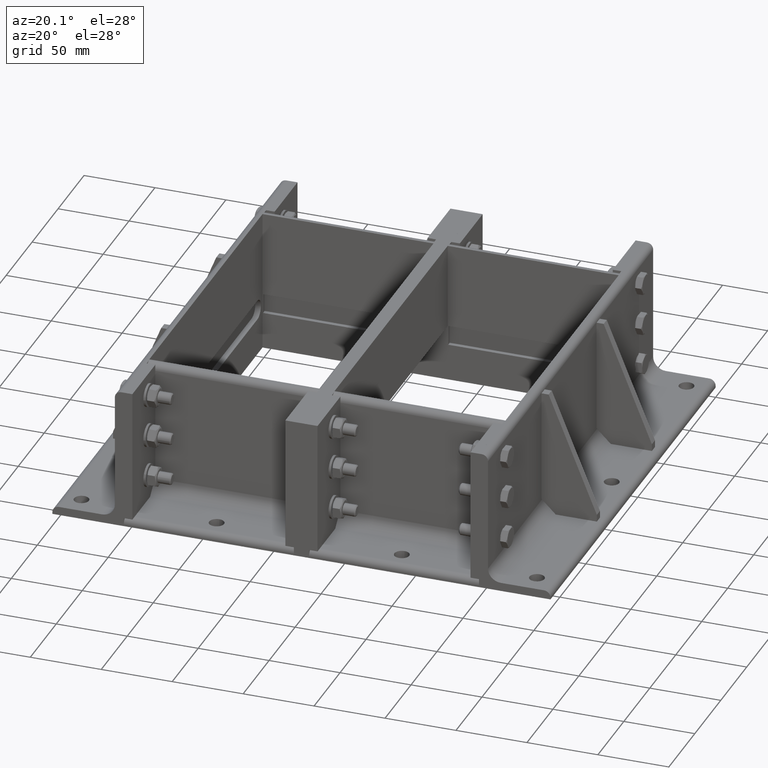
[diagram: clean part render]
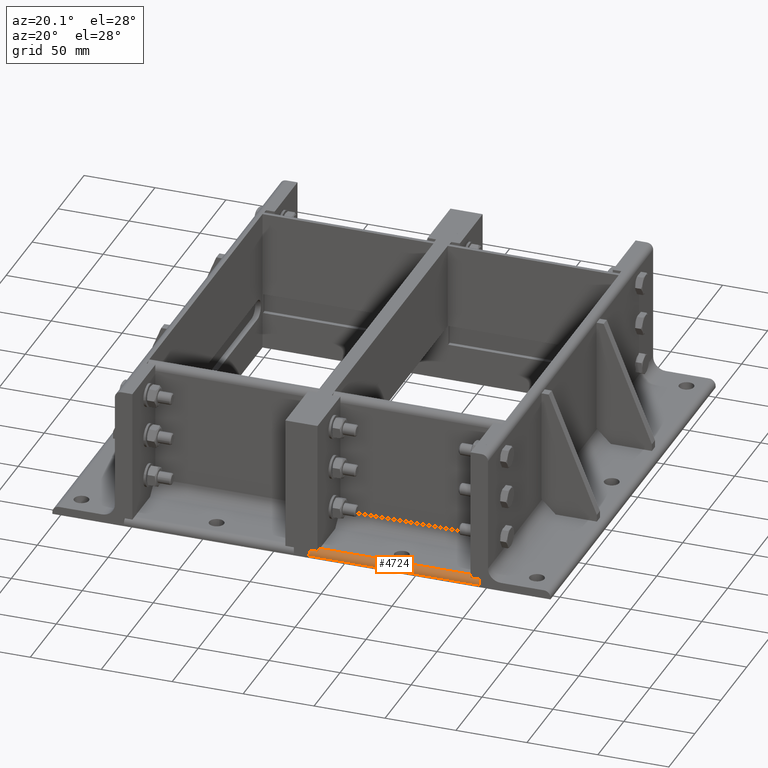
[diagram: same view with one face highlighted and labeled with its STEP entity id]
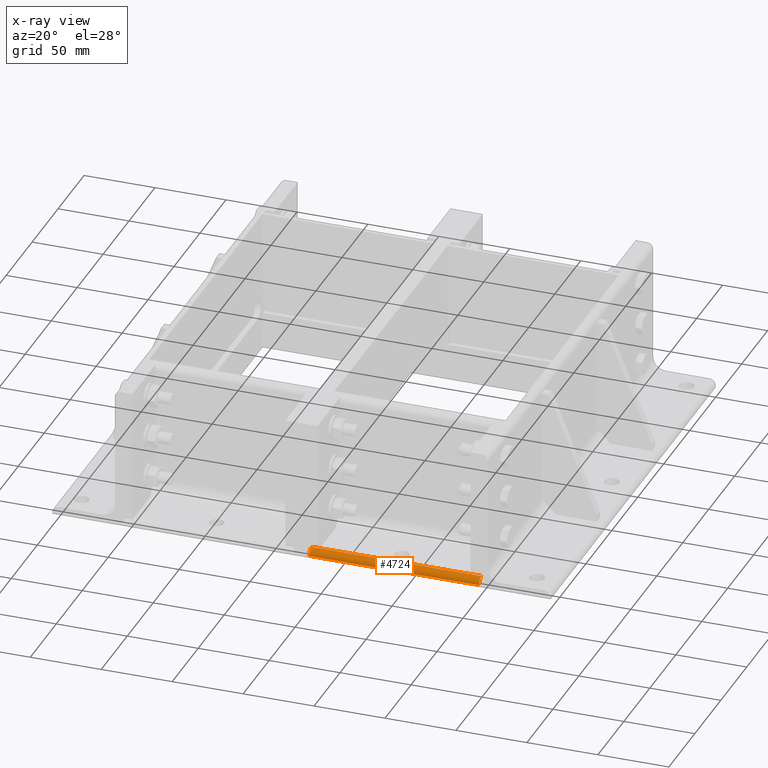
[diagram: x-ray of the same camera — body ghosted, the highlighted face saturated]
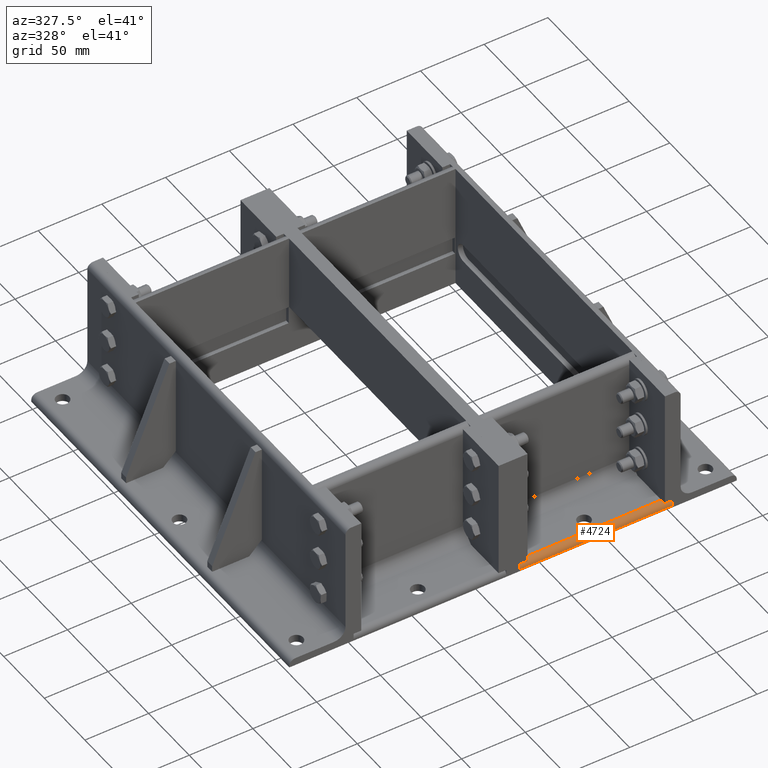
[diagram: same view with one face highlighted and labeled with its STEP entity id]
A machine part, auxiliary view. The second image highlights one B-rep face of the part: STEP entity #4724.
The next image is the same camera in x-ray: the body ghosted, the highlighted face saturated — about 0% of this face is hidden behind the body in this view.
A second angle (auxiliary view) of the same face is appended — the face is thin or edge-on in the first view.
In plain terms, the highlighted cylindrical surface (edge-blend (fillet) strip) has radius 4.5 mm, axis along (1, 0, 0).
Its self-contained STEP definition (entity closure, byte-faithful):
#4575=CARTESIAN_POINT('',(39.5,119.80000000000001,-1.208471E-014));
#4576=VERTEX_POINT('',#4575);
#4583=CARTESIAN_POINT('',(44.0,119.80000000000001,-4.500000000000012));
#4584=VERTEX_POINT('',#4583);
#4585=CARTESIAN_POINT('',(39.5,119.80000000000001,-4.500000000000012));
#4586=DIRECTION('',(0.0,-1.0,0.0));
#4587=DIRECTION('',(0.707106781186548,0.0,0.707106781186547));
#4588=AXIS2_PLACEMENT_3D('',#4585,#4586,#4587);
#4589=CIRCLE('',#4588,4.5);
#4590=EDGE_CURVE('',#4584,#4576,#4589,.T.);
#4679=CARTESIAN_POINT('',(39.5,0.0,-1.208471E-014));
#4680=VERTEX_POINT('',#4679);
#4687=CARTESIAN_POINT('',(39.5,119.80000000000001,-1.221245E-014));
#4688=DIRECTION('',(0.0,-1.0,0.0));
#4689=VECTOR('',#4688,119.80000000000001);
#4690=LINE('',#4687,#4689);
#4691=EDGE_CURVE('',#4576,#4680,#4690,.T.);
#4700=CARTESIAN_POINT('',(39.5,0.0,-4.500000000000012));
#4701=DIRECTION('',(0.0,1.0,0.0));
#4702=DIRECTION('',(0.707106781186548,0.0,0.707106781186547));
#4703=AXIS2_PLACEMENT_3D('',#4700,#4701,#4702);
#4704=CYLINDRICAL_SURFACE('',#4703,4.5);
#4705=ORIENTED_EDGE('',*,*,#4590,.T.);
#4706=ORIENTED_EDGE('',*,*,#4691,.T.);
#4707=CARTESIAN_POINT('',(44.0,0.0,-4.500000000000012));
#4708=VERTEX_POINT('',#4707);
#4709=CARTESIAN_POINT('',(39.5,0.0,-4.500000000000012));
#4710=DIRECTION('',(0.0,1.0,0.0));
#4711=DIRECTION('',(0.707106781186548,0.0,0.707106781186547));
#4712=AXIS2_PLACEMENT_3D('',#4709,#4710,#4711);
#4713=CIRCLE('',#4712,4.5);
#4714=EDGE_CURVE('',#4680,#4708,#4713,.T.);
#4715=ORIENTED_EDGE('',*,*,#4714,.T.);
#4716=CARTESIAN_POINT('',(44.0,0.0,-4.500000000000012));
#4717=DIRECTION('',(0.0,1.0,0.0));
#4718=VECTOR('',#4717,119.80000000000001);
#4719=LINE('',#4716,#4718);
#4720=EDGE_CURVE('',#4708,#4584,#4719,.T.);
#4721=ORIENTED_EDGE('',*,*,#4720,.T.);
#4722=EDGE_LOOP('',(#4705,#4706,#4715,#4721));
#4723=FACE_OUTER_BOUND('',#4722,.T.);
#4724=ADVANCED_FACE('',(#4723),#4704,.T.);